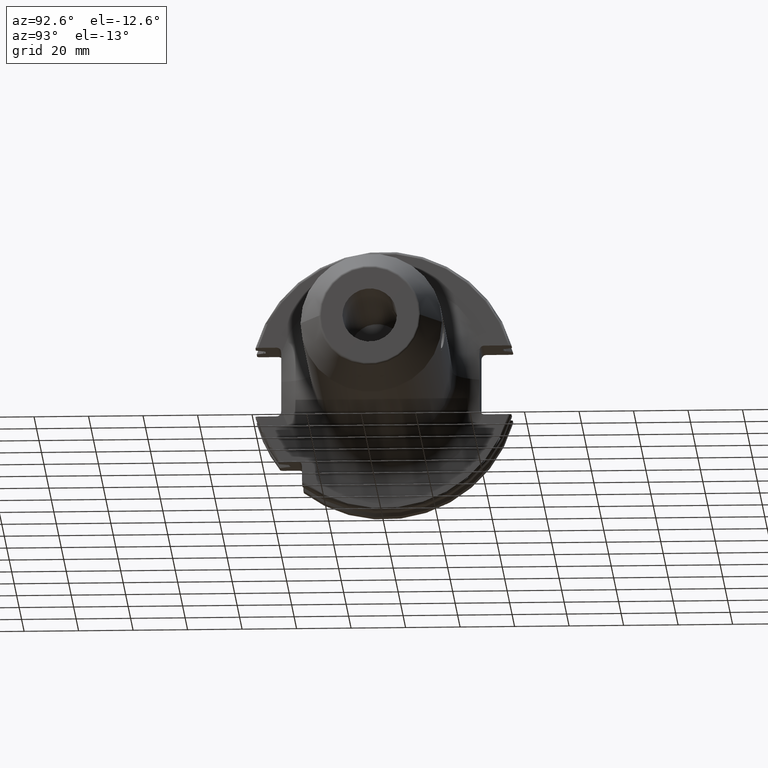
[diagram: clean part render]
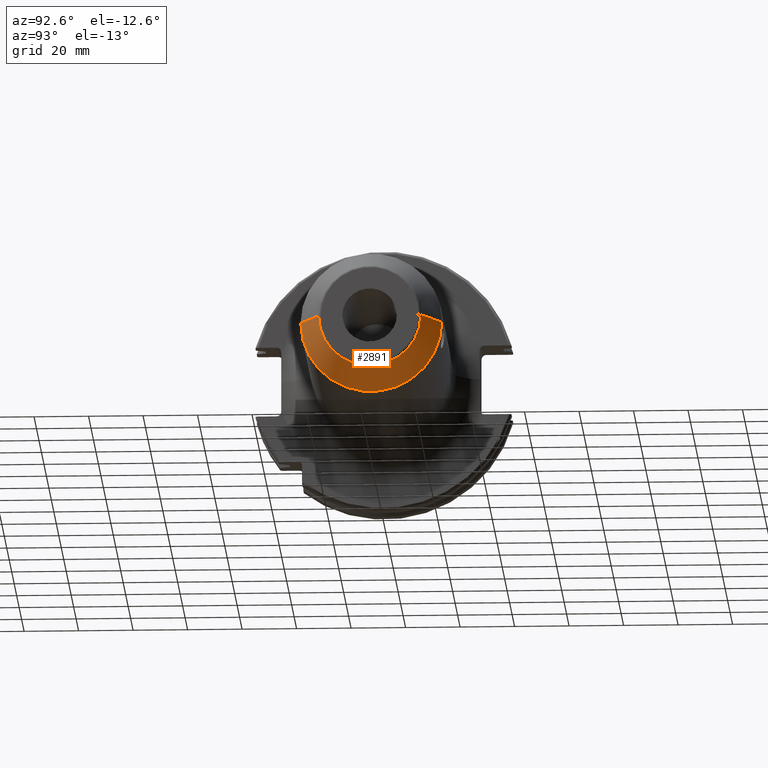
[diagram: same view with one face highlighted and labeled with its STEP entity id]
A machine part, auxiliary view. The second image highlights one B-rep face of the part: STEP entity #2891.
In plain terms, the highlighted conical surface has half-angle 30 deg.
Its self-contained STEP definition (entity closure, byte-faithful):
#1156=CARTESIAN_POINT('',(1.172320508076E2,0.E0,0.E0));
#1157=DIRECTION('',(-1.E0,0.E0,0.E0));
#1158=DIRECTION('',(0.E0,1.E0,0.E0));
#1159=AXIS2_PLACEMENT_3D('',#1156,#1157,#1158);
#1161=DIRECTION('',(-8.660254037844E-1,-5.E-1,1.600756609654E-13));
#1162=VECTOR('',#1161,1.416580753731E1);
#1163=CARTESIAN_POINT('',(1.295E2,-1.878312163513E1,1.076846058348E-12));
#1164=LINE('',#1163,#1162);
#1165=CARTESIAN_POINT('',(1.295E2,0.E0,0.E0));
#1166=DIRECTION('',(-1.E0,0.E0,0.E0));
#1167=DIRECTION('',(0.E0,1.E0,0.E0));
#1168=AXIS2_PLACEMENT_3D('',#1165,#1166,#1167);
#1170=DIRECTION('',(-8.660254037844E-1,5.E-1,-1.602834738051E-13));
#1171=VECTOR('',#1170,1.416580753731E1);
#1172=CARTESIAN_POINT('',(1.295E2,1.878312163513E1,-1.077421125593E-12));
#1173=LINE('',#1172,#1171);
#1693=CARTESIAN_POINT('',(1.172320508076E2,2.586602540378E1,0.E0));
#1694=CARTESIAN_POINT('',(1.172320508076E2,-2.586602540378E1,0.E0));
#1695=VERTEX_POINT('',#1693);
#1696=VERTEX_POINT('',#1694);
#1697=CARTESIAN_POINT('',(1.295E2,1.878312163513E1,0.E0));
#1698=CARTESIAN_POINT('',(1.295E2,-1.878312163513E1,0.E0));
#1699=VERTEX_POINT('',#1697);
#1700=VERTEX_POINT('',#1698);
#2877=CARTESIAN_POINT('',(1.233660254038E2,0.E0,0.E0));
#2878=DIRECTION('',(-1.E0,0.E0,0.E0));
#2879=DIRECTION('',(0.E0,1.E0,0.E0));
#2880=AXIS2_PLACEMENT_3D('',#2877,#2878,#2879);
#2881=CONICAL_SURFACE('',#2880,2.232457351946E1,3.E1);
#2883=ORIENTED_EDGE('',*,*,#2882,.T.);
#2885=ORIENTED_EDGE('',*,*,#2884,.F.);
#2886=ORIENTED_EDGE('',*,*,#2867,.F.);
#2888=ORIENTED_EDGE('',*,*,#2887,.T.);
#2889=EDGE_LOOP('',(#2883,#2885,#2886,#2888));
#2890=FACE_OUTER_BOUND('',#2889,.F.);
#2891=ADVANCED_FACE('',(#2890),#2881,.T.);
#1160=CIRCLE('',#1159,2.586602540378E1);
#1169=CIRCLE('',#1168,1.878312163513E1);
#2867=EDGE_CURVE('',#1699,#1700,#1169,.T.);
#2882=EDGE_CURVE('',#1695,#1696,#1160,.T.);
#2884=EDGE_CURVE('',#1700,#1696,#1164,.T.);
#2887=EDGE_CURVE('',#1699,#1695,#1173,.T.);